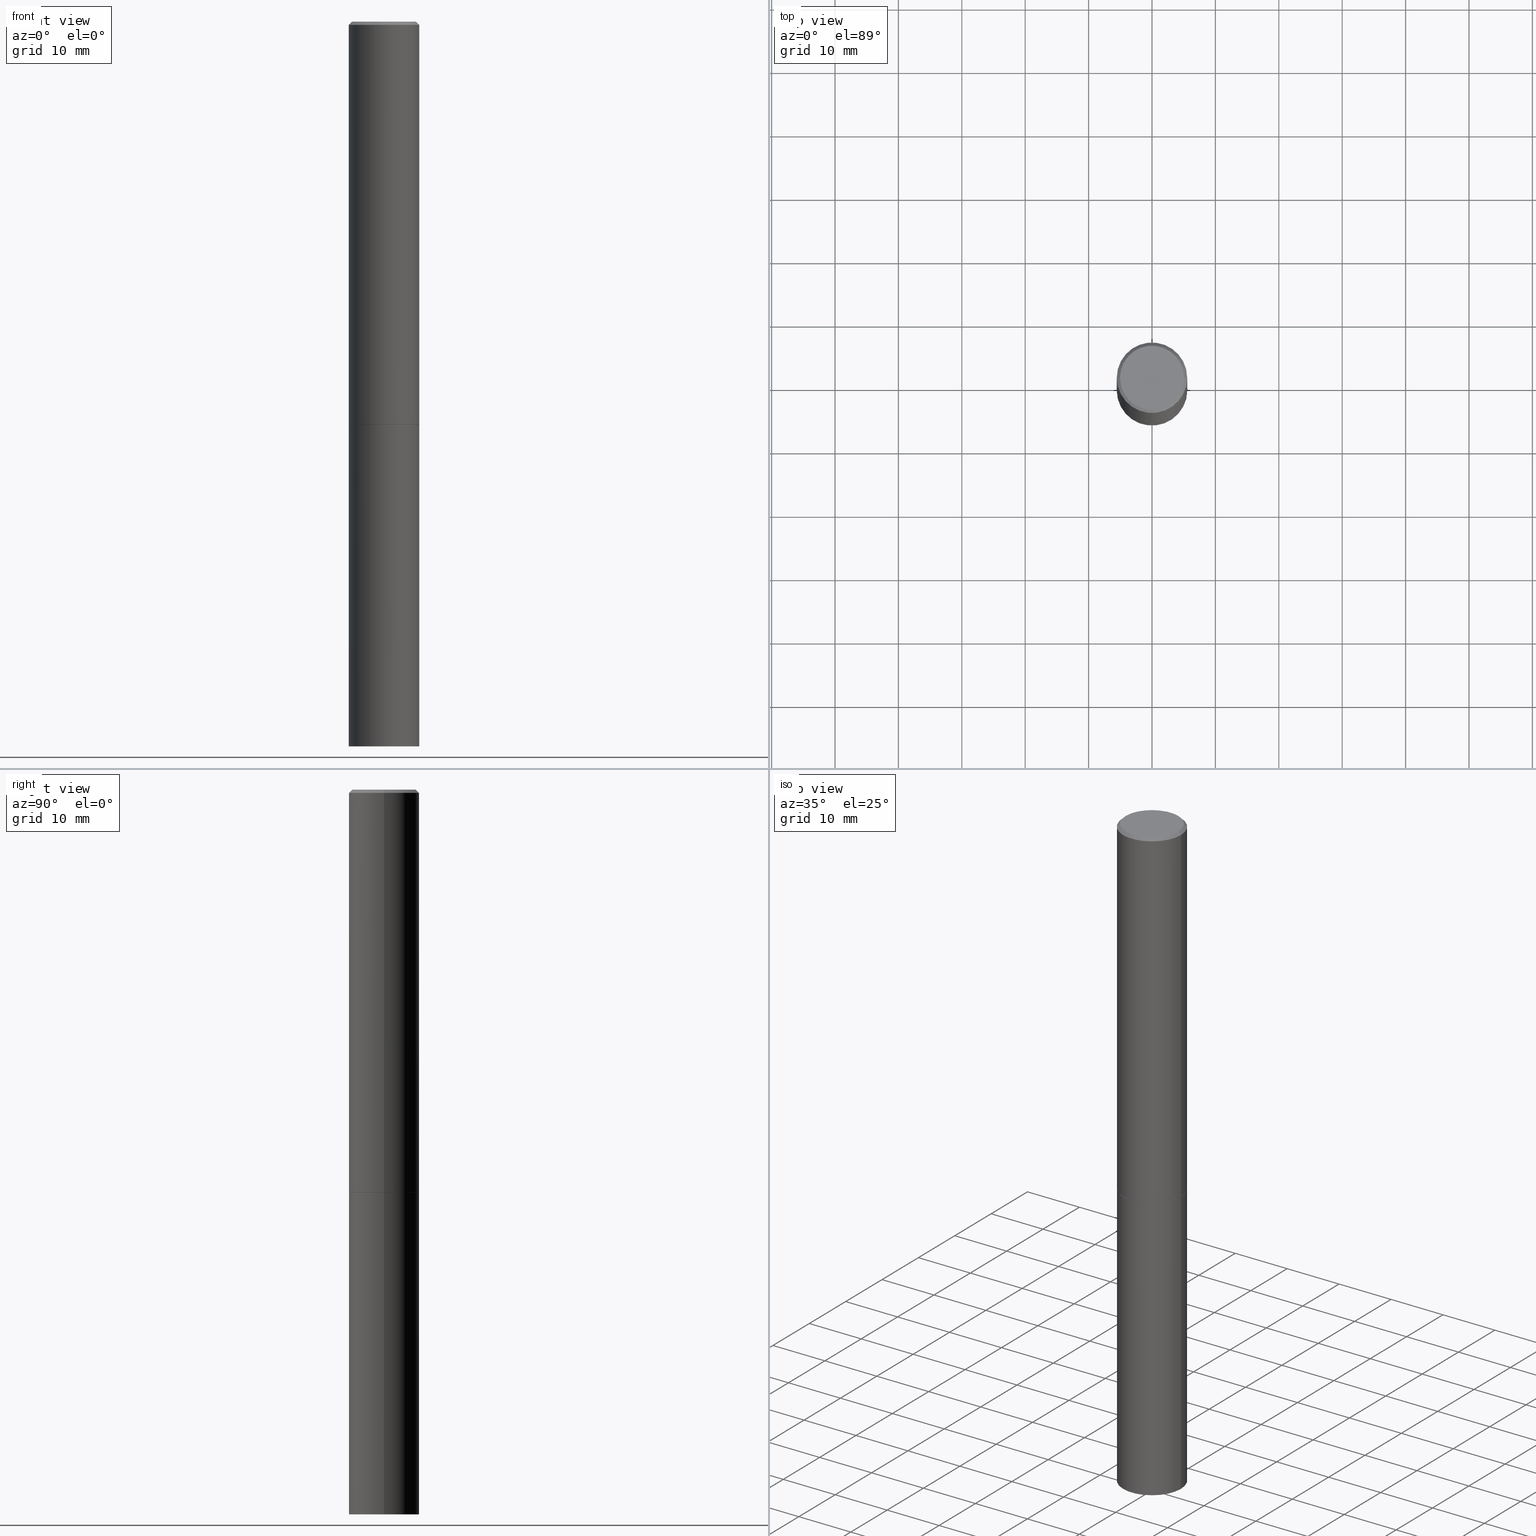
[diagram: canonical four-view strip — front | top / right | iso, engineering-drawing reading convention]
A machine part, canonical four-view strip (front | top / right | iso — engineering-drawing reading convention). The complete STEP part file that produces these views, byte-faithful:
ISO-10303-21;
HEADER;
FILE_DESCRIPTION (( 'STEP AP203' ),
    '1' );
FILE_NAME ('31732.STEP',
    '2023-03-21T20:27:41',
    ( '' ),
    ( '' ),
    'SwSTEP 2.0',
    'SolidWorks 2022',
    '' );
FILE_SCHEMA (( 'CONFIG_CONTROL_DESIGN' ));
ENDSEC;

DATA;
#1 = DIRECTION ( 'NONE',  ( 1.000000000000000000, -6.982962677686266711E-15, 4.876176775795935232E-29 ) ) ;
#2 = ORIENTED_EDGE ( 'NONE', *, *, #19, .T. ) ;
#3 = CYLINDRICAL_SURFACE ( 'NONE', #287, 0.2187499999999998057 ) ;
#4 = EDGE_CURVE ( 'NONE', #151, #165, #33, .T. ) ;
#5 = ORIENTED_EDGE ( 'NONE', *, *, #249, .F. ) ;
#6 = CARTESIAN_POINT ( 'NONE',  ( 0.2187499999999996947, -1.570563563789383264E-15, -0.02000000000000003164 ) ) ;
#7 = ORIENTED_EDGE ( 'NONE', *, *, #4, .T. ) ;
#8 = DIRECTION ( 'NONE',  ( -2.445468806185136597E-29, 3.491481338843145583E-15, 1.000000000000000000 ) ) ;
#9 = ADVANCED_FACE ( 'NONE', ( #376 ), #236, .F. ) ;
#10 = CIRCLE ( 'NONE', #213, 0.2177499999999999991 ) ;
#11 = CONICAL_SURFACE ( 'NONE', #250, 0.2177499999999999991, 0.7853981633978239785 ) ;
#12 = PERSON_AND_ORGANIZATION_ROLE ( 'classification_officer' ) ;
#13 = ORIENTED_EDGE ( 'NONE', *, *, #249, .T. ) ;
#14 = DIRECTION ( 'NONE',  ( -2.445468806185136597E-29, 3.491481338843145583E-15, 1.000000000000000000 ) ) ;
#15 = APPROVAL_STATUS ( 'not_yet_approved' ) ;
#16 = ORIENTED_EDGE ( 'NONE', *, *, #69, .T. ) ;
#17 = ORIENTED_EDGE ( 'NONE', *, *, #275, .F. ) ;
#18 = CARTESIAN_POINT ( 'NONE',  ( -0.2187499999999996947, 1.457693458967005573E-15, -0.02000000000000003164 ) ) ;
#19 = EDGE_CURVE ( 'NONE', #369, #318, #201, .T. ) ;
#20 = AXIS2_PLACEMENT_3D ( 'NONE', #80, #294, #297 ) ;
#21 = CARTESIAN_POINT ( 'NONE',  ( 6.113672015462842613E-29, -8.728703347107864943E-15, -2.500000000000000000 ) ) ;
#22 = CC_DESIGN_APPROVAL ( #185, ( #277 ) ) ;
#23 = CARTESIAN_POINT ( 'NONE',  ( -0.2187500000000003331, -1.418414293905028211E-14, -4.500000000000000000 ) ) ;
#24 = FACE_OUTER_BOUND ( 'NONE', #43, .T. ) ;
#25 = CARTESIAN_POINT ( 'NONE',  ( 0.000000000000000000, 0.000000000000000000, 0.000000000000000000 ) ) ;
#26 = CONICAL_SURFACE ( 'NONE', #113, 751.2258538476867216, 1.518436449235075036 ) ;
#27 = DIRECTION ( 'NONE',  ( -2.445468806185136597E-29, 3.491481338843145583E-15, 1.000000000000000000 ) ) ;
#28 = VERTEX_POINT ( 'NONE', #288 ) ;
#29 =( LENGTH_UNIT ( ) NAMED_UNIT ( * ) SI_UNIT ( $, .METRE. ) );
#30 = ORIENTED_EDGE ( 'NONE', *, *, #139, .T. ) ;
#31 = EDGE_CURVE ( 'NONE', #180, #151, #224, .T. ) ;
#32 = ORIENTED_EDGE ( 'NONE', *, *, #177, .T. ) ;
#33 = CIRCLE ( 'NONE', #306, 0.2187500000000000000 ) ;
#34 = LINE ( 'NONE', #117, #133 ) ;
#35 = VERTEX_POINT ( 'NONE', #179 ) ;
#36 = APPLICATION_PROTOCOL_DEFINITION ( 'international standard', 'config_control_design', 1994, #290 ) ;
#37 = EDGE_LOOP ( 'NONE', ( #13, #220 ) ) ;
#38 = APPROVAL_ROLE ( '' ) ;
#39 = VERTEX_POINT ( 'NONE', #302 ) ;
#40 = PERSON_AND_ORGANIZATION ( #91, #349 ) ;
#41 = ORIENTED_EDGE ( 'NONE', *, *, #320, .F. ) ;
#42 = APPROVAL_DATE_TIME ( #128, #84 ) ;
#43 = EDGE_LOOP ( 'NONE', ( #41, #311, #193, #178 ) ) ;
#44 = EDGE_CURVE ( 'NONE', #35, #323, #143, .T. ) ;
#45 = SECURITY_CLASSIFICATION_LEVEL ( 'unclassified' ) ;
#46 = DIRECTION ( 'NONE',  ( -2.445468806185136597E-29, 3.491481338843145583E-15, 1.000000000000000000 ) ) ;
#47 = CIRCLE ( 'NONE', #20, 0.1987499999999996769 ) ;
#48 = SECURITY_CLASSIFICATION ( '', '', #45 ) ;
#49 = FACE_OUTER_BOUND ( 'NONE', #181, .T. ) ;
#50 = DIRECTION ( 'NONE',  ( 2.445468806185136597E-29, -3.491481338843145583E-15, -1.000000000000000000 ) ) ;
#51 = LINE ( 'NONE', #108, #168 ) ;
#52 = EDGE_CURVE ( 'NONE', #151, #211, #195, .T. ) ;
#53 = AXIS2_PLACEMENT_3D ( 'NONE', #231, #145, #256 ) ;
#54 = DIRECTION ( 'NONE',  ( 2.438088387897960049E-29, -3.491481338843145188E-15, -1.000000000000000000 ) ) ;
#55 = CARTESIAN_POINT ( 'NONE',  ( 6.113672015462842613E-29, -8.728703347107864943E-15, -2.500000000000000000 ) ) ;
#56 = CARTESIAN_POINT ( 'NONE',  ( 0.2187500000000003331, -1.721239996180668100E-14, -4.500000000000000000 ) ) ;
#57 = CONICAL_SURFACE ( 'NONE', #356, 0.2177499999999999991, 0.7853981633978239785 ) ;
#58 = APPROVAL_PERSON_ORGANIZATION ( #164, #225, #135 ) ;
#59 = EDGE_LOOP ( 'NONE', ( #238, #5, #94, #2 ) ) ;
#60 = EDGE_LOOP ( 'NONE', ( #248, #126, #186 ) ) ;
#61 = CC_DESIGN_PERSON_AND_ORGANIZATION_ASSIGNMENT ( #283, #96, ( #341 ) ) ;
#62 = ORIENTED_EDGE ( 'NONE', *, *, #188, .T. ) ;
#63 = EDGE_CURVE ( 'NONE', #318, #369, #72, .T. ) ;
#64 = CARTESIAN_POINT ( 'NONE',  ( 0.000000000000000000, 0.000000000000000000, 0.000000000000000000 ) ) ;
#65 = ORIENTED_EDGE ( 'NONE', *, *, #63, .T. ) ;
#66 =( NAMED_UNIT ( * ) PLANE_ANGLE_UNIT ( ) SI_UNIT ( $, .RADIAN. ) );
#67 = ORIENTED_EDGE ( 'NONE', *, *, #334, .F. ) ;
#68 = DATE_AND_TIME ( #319, #73 ) ;
#69 = EDGE_CURVE ( 'NONE', #159, #35, #354, .T. ) ;
#70 = PERSON_AND_ORGANIZATION_ROLE ( 'design_supplier' ) ;
#71 = ORIENTED_EDGE ( 'NONE', *, *, #4, .F. ) ;
#72 = CIRCLE ( 'NONE', #299, 0.2187499999999996947 ) ;
#73 = LOCAL_TIME ( 16, 27, 41.00000000000000000, #130 ) ;
#74 = ORIENTED_EDGE ( 'NONE', *, *, #188, .F. ) ;
#75 = DIRECTION ( 'NONE',  ( -2.445468806185136877E-29, 3.491481338843145188E-15, 1.000000000000000000 ) ) ;
#76 = CARTESIAN_POINT ( 'NONE',  ( 4.890937612370280165E-31, -6.982962677686301470E-17, -0.02000000000000003164 ) ) ;
#77 = DIRECTION ( 'NONE',  ( 0.7071067811868130271, -2.468850131085038979E-15, 0.7071067811862817853 ) ) ;
#78 = ADVANCED_FACE ( 'NONE', ( #49 ), #11, .T. ) ;
#79 = CARTESIAN_POINT ( 'NONE',  ( 6.113672015462842613E-29, -8.728703347107864943E-15, -2.500000000000000000 ) ) ;
#80 = CARTESIAN_POINT ( 'NONE',  ( 0.000000000000000000, 0.000000000000000000, 0.000000000000000000 ) ) ;
#81 = CARTESIAN_POINT ( 'NONE',  ( 0.2187499999999996947, -1.570563563789383264E-15, -0.02000000000000003164 ) ) ;
#82 = AXIS2_PLACEMENT_3D ( 'NONE', #233, #27, #184 ) ;
#83 = CARTESIAN_POINT ( 'NONE',  ( -0.2187499999999998057, 1.554312234475217776E-15, -1.076017050993259781E-29 ) ) ;
#84 = APPROVAL ( #15, 'UNSPECIFIED' ) ;
#85 = PLANE ( 'NONE',  #88 ) ;
#86 = DIRECTION ( 'NONE',  ( -1.000000000000000000, 6.982962677686265133E-15, 0.000000000000000000 ) ) ;
#87 = CARTESIAN_POINT ( 'NONE',  ( 0.000000000000000000, 0.000000000000000000, 0.000000000000000000 ) ) ;
#88 = AXIS2_PLACEMENT_3D ( 'NONE', #358, #54, #200 ) ;
#89 =( NAMED_UNIT ( * ) SI_UNIT ( $, .STERADIAN. ) SOLID_ANGLE_UNIT ( ) );
#90 = DIRECTION ( 'NONE',  ( -2.438088387897960049E-29, 3.491481338843145188E-15, 1.000000000000000000 ) ) ;
#91 = PERSON ( 'UNSPECIFIED', 'UNSPECIFIED', 'UNSPECIFIED', ('UNSPECIFIED'), ('UNSPECIFIED'), ('UNSPECIFIED') ) ;
#92 = ORIENTED_EDGE ( 'NONE', *, *, #320, .T. ) ;
#93 =( CONVERSION_BASED_UNIT ( 'INCH', #115 ) LENGTH_UNIT ( ) NAMED_UNIT ( #292 ) );
#94 = ORIENTED_EDGE ( 'NONE', *, *, #258, .T. ) ;
#95 = VECTOR ( 'NONE', #333, 39.37007874015748143 ) ;
#96 = PERSON_AND_ORGANIZATION_ROLE ( 'design_owner' ) ;
#97 = ORIENTED_EDGE ( 'NONE', *, *, #107, .F. ) ;
#98 = CALENDAR_DATE ( 2023, 21, 3 ) ;
#99 = ORIENTED_EDGE ( 'NONE', *, *, #162, .F. ) ;
#100 = COORDINATED_UNIVERSAL_TIME_OFFSET ( 5, 0, .BEHIND. ) ;
#101 = ORIENTED_EDGE ( 'NONE', *, *, #210, .F. ) ;
#102 = AXIS2_PLACEMENT_3D ( 'NONE', #112, #296, #203 ) ;
#103 = DATE_AND_TIME ( #375, #229 ) ;
#104 = DIRECTION ( 'NONE',  ( 1.000000000000000000, -6.982962677686262766E-15, 0.000000000000000000 ) ) ;
#105 = DIRECTION ( 'NONE',  ( 1.000000000000000000, -6.982962677686267499E-15, 0.000000000000000000 ) ) ;
#106 = CONICAL_SURFACE ( 'NONE', #53, 0.2187499999999996947, 0.7853981633974473908 ) ;
#107 = EDGE_CURVE ( 'NONE', #323, #35, #227, .T. ) ;
#108 = CARTESIAN_POINT ( 'NONE',  ( -0.2177499999999999991, -7.181496539990246005E-15, -2.500000000000000000 ) ) ;
#109 = DIRECTION ( 'NONE',  ( -2.445468806185136597E-29, 3.491481338843145583E-15, 1.000000000000000000 ) ) ;
#110 = DIRECTION ( 'NONE',  ( -2.445468806185136597E-29, 3.491481338843145583E-15, 1.000000000000000000 ) ) ;
#111 = CLOSED_SHELL ( 'NONE', ( #382, #385, #9, #293, #262 ) ) ;
#112 = CARTESIAN_POINT ( 'NONE',  ( 1.387863832190143063E-15, 0.1987499999999996769, -6.939319160950740954E-16 ) ) ;
#113 = AXIS2_PLACEMENT_3D ( 'NONE', #125, #119, #86 ) ;
#114 = DIRECTION ( 'NONE',  ( 1.000000000000000000, -6.982962677686266711E-15, 4.876176775795936353E-29 ) ) ;
#115 = LENGTH_MEASURE_WITH_UNIT ( LENGTH_MEASURE( 0.02539999999999999897 ), #29 );
#116 = ADVANCED_FACE ( 'NONE', ( #317 ), #226, .T. ) ;
#117 = CARTESIAN_POINT ( 'NONE',  ( -0.2187500000000000000, 1.554312234475219157E-15, -1.076017050993260622E-29 ) ) ;
#118 = AXIS2_PLACEMENT_3D ( 'NONE', #176, #141, #171 ) ;
#119 = DIRECTION ( 'NONE',  ( 2.445468806185136597E-29, -3.491481338843145583E-15, -1.000000000000000000 ) ) ;
#120 = ORIENTED_EDGE ( 'NONE', *, *, #107, .T. ) ;
#121 = LINE ( 'NONE', #207, #360 ) ;
#122 = ORIENTED_EDGE ( 'NONE', *, *, #162, .T. ) ;
#123 = EDGE_CURVE ( 'NONE', #211, #367, #295, .T. ) ;
#124 = CC_DESIGN_PERSON_AND_ORGANIZATION_ASSIGNMENT ( #343, #70, ( #277 ) ) ;
#125 = CARTESIAN_POINT ( 'NONE',  ( 1.072548737362512635E-27, -1.531315342084755796E-13, -43.85861453843931912 ) ) ;
#126 = ORIENTED_EDGE ( 'NONE', *, *, #31, .T. ) ;
#127 = CIRCLE ( 'NONE', #153, 0.2187500000000000000 ) ;
#128 = DATE_AND_TIME ( #166, #134 ) ;
#129 = ORIENTED_EDGE ( 'NONE', *, *, #210, .T. ) ;
#130 = COORDINATED_UNIVERSAL_TIME_OFFSET ( 5, 0, .BEHIND. ) ;
#131 = EDGE_LOOP ( 'NONE', ( #101, #99 ) ) ;
#132 = ORIENTED_EDGE ( 'NONE', *, *, #52, .F. ) ;
#133 = VECTOR ( 'NONE', #155, 39.37007874015748143 ) ;
#134 = LOCAL_TIME ( 16, 27, 41.00000000000000000, #163 ) ;
#135 = APPROVAL_ROLE ( '' ) ;
#136 = ORIENTED_EDGE ( 'NONE', *, *, #19, .F. ) ;
#137 = DIRECTION ( 'NONE',  ( 1.000000000000000000, -6.982962677686262766E-15, 0.000000000000000000 ) ) ;
#138 = EDGE_LOOP ( 'NONE', ( #17, #120, #300, #136 ) ) ;
#139 = EDGE_CURVE ( 'NONE', #367, #211, #348, .T. ) ;
#140 = CC_DESIGN_PERSON_AND_ORGANIZATION_ASSIGNMENT ( #217, #370, ( #277 ) ) ;
#141 = DIRECTION ( 'NONE',  ( -2.445468806185136597E-29, 3.491481338843145583E-15, 1.000000000000000000 ) ) ;
#142 = UNCERTAINTY_MEASURE_WITH_UNIT (LENGTH_MEASURE( 1.000000000000000082E-05 ), #93, 'distance_accuracy_value', 'NONE');
#143 = CIRCLE ( 'NONE', #324, 0.2187500000000000000 ) ;
#144 = APPROVAL_PERSON_ORGANIZATION ( #218, #84, #314 ) ;
#145 = DIRECTION ( 'NONE',  ( 2.445468806185136597E-29, -3.491481338843145583E-15, -1.000000000000000000 ) ) ;
#146 = LINE ( 'NONE', #83, #148 ) ;
#147 = DIRECTION ( 'NONE',  ( 1.000000000000000000, -6.982962677686267499E-15, 0.000000000000000000 ) ) ;
#148 = VECTOR ( 'NONE', #379, 39.37007874015748143 ) ;
#149 = DIRECTION ( 'NONE',  ( 0.7071067811865469066, -7.319954787623254468E-15, -0.7071067811865482389 ) ) ;
#150 = CARTESIAN_POINT ( 'NONE',  ( 0.2187499999999998057, -1.527523085743869462E-15, 1.066663669705360184E-29 ) ) ;
#151 = VERTEX_POINT ( 'NONE', #56 ) ;
#152 = FACE_OUTER_BOUND ( 'NONE', #138, .T. ) ;
#153 = AXIS2_PLACEMENT_3D ( 'NONE', #271, #8, #205 ) ;
#154 = MANIFOLD_SOLID_BREP ( 'Body-Move/Copy2[2]', #269 ) ;
#155 = DIRECTION ( 'NONE',  ( -2.445468806185136877E-29, 3.491481338843145188E-15, 1.000000000000000000 ) ) ;
#156 = ADVANCED_FACE ( 'NONE', ( #169 ), #57, .T. ) ;
#157 = EDGE_LOOP ( 'NONE', ( #216, #342, #71 ) ) ;
#158 = LINE ( 'NONE', #150, #95 ) ;
#159 = VERTEX_POINT ( 'NONE', #331 ) ;
#160 = APPROVAL_DATE_TIME ( #241, #185 ) ;
#161 = AXIS2_PLACEMENT_3D ( 'NONE', #232, #50, #383 ) ;
#162 = EDGE_CURVE ( 'NONE', #28, #159, #206, .T. ) ;
#163 = COORDINATED_UNIVERSAL_TIME_OFFSET ( 5, 0, .BEHIND. ) ;
#164 = PERSON_AND_ORGANIZATION ( #91, #349 ) ;
#165 = VERTEX_POINT ( 'NONE', #23 ) ;
#166 = CALENDAR_DATE ( 2023, 21, 3 ) ;
#167 = DIRECTION ( 'NONE',  ( 1.000000000000000000, -6.982962677686265922E-15, 0.000000000000000000 ) ) ;
#168 = VECTOR ( 'NONE', #264, 39.37007874015748854 ) ;
#169 = FACE_OUTER_BOUND ( 'NONE', #347, .T. ) ;
#170 = CC_DESIGN_PERSON_AND_ORGANIZATION_ASSIGNMENT ( #40, #187, ( #237 ) ) ;
#171 = DIRECTION ( 'NONE',  ( 1.000000000000000000, -6.982962677686267499E-15, 0.000000000000000000 ) ) ;
#172 = AXIS2_PLACEMENT_3D ( 'NONE', #204, #261, #357 ) ;
#173 = CC_DESIGN_SECURITY_CLASSIFICATION ( #48, ( #277 ) ) ;
#174 = FACE_OUTER_BOUND ( 'NONE', #37, .T. ) ;
#175 = DIRECTION ( 'NONE',  ( -2.445468806185136597E-29, 3.491481338843145583E-15, 1.000000000000000000 ) ) ;
#176 = CARTESIAN_POINT ( 'NONE',  ( 6.113672015462842613E-29, -8.728703347107864943E-15, -2.500000000000000000 ) ) ;
#177 = EDGE_CURVE ( 'NONE', #266, #318, #298, .T. ) ;
#178 = ORIENTED_EDGE ( 'NONE', *, *, #139, .F. ) ;
#179 = CARTESIAN_POINT ( 'NONE',  ( 0.2187500000000000000, -1.025273495151289515E-14, -2.499000000000000998 ) ) ;
#180 = VERTEX_POINT ( 'NONE', #328 ) ;
#181 = EDGE_LOOP ( 'NONE', ( #74, #122, #16, #97 ) ) ;
#182 = DIRECTION ( 'NONE',  ( 0.000000000000000000, 0.000000000000000000, 1.000000000000000000 ) ) ;
#183 = AXIS2_PLACEMENT_3D ( 'NONE', #222, #353, #194 ) ;
#184 = DIRECTION ( 'NONE',  ( 1.000000000000000000, -6.982962677686266711E-15, 4.876176775795935232E-29 ) ) ;
#185 = APPROVAL ( #245, 'UNSPECIFIED' ) ;
#186 = ORIENTED_EDGE ( 'NONE', *, *, #301, .F. ) ;
#187 = PERSON_AND_ORGANIZATION_ROLE ( 'creator' ) ;
#188 = EDGE_CURVE ( 'NONE', #28, #323, #51, .T. ) ;
#189 = CARTESIAN_POINT ( 'NONE',  ( 6.111226546656659252E-29, -8.725211865769023513E-15, -2.499000000000000998 ) ) ;
#190 = PERSON_AND_ORGANIZATION ( #91, #349 ) ;
#191 = CARTESIAN_POINT ( 'NONE',  ( 6.111226546656659252E-29, -8.725211865769023513E-15, -2.499000000000000998 ) ) ;
#192 = APPROVAL_PERSON_ORGANIZATION ( #221, #185, #38 ) ;
#193 = ORIENTED_EDGE ( 'NONE', *, *, #52, .T. ) ;
#194 = DIRECTION ( 'NONE',  ( -1.000000000000000000, 6.982962677686265133E-15, 0.000000000000000000 ) ) ;
#195 = LINE ( 'NONE', #278, #364 ) ;
#196 = AXIS2_PLACEMENT_3D ( 'NONE', #365, #90, #308 ) ;
#197 = DIRECTION ( 'NONE',  ( 1.000000000000000000, -6.982962677686262766E-15, 0.000000000000000000 ) ) ;
#198 = CARTESIAN_POINT ( 'NONE',  ( 0.1987499999999996769, -1.467043770423236480E-15, 9.982525199991768280E-30 ) ) ;
#199 = ADVANCED_FACE ( 'NONE', ( #234 ), #106, .T. ) ;
#200 = DIRECTION ( 'NONE',  ( -1.000000000000000000, 6.982962677686265922E-15, -4.876176775795935793E-29 ) ) ;
#201 = CIRCLE ( 'NONE', #378, 0.2187499999999996947 ) ;
#202 = LOCAL_TIME ( 16, 27, 41.00000000000000000, #100 ) ;
#203 = DIRECTION ( 'NONE',  ( -1.000000000000000000, 6.982962677686265922E-15, -4.876176775795935793E-29 ) ) ;
#204 = CARTESIAN_POINT ( 'NONE',  ( 6.113672015462842613E-29, -8.728703347107864943E-15, -2.500000000000000000 ) ) ;
#205 = DIRECTION ( 'NONE',  ( 1.000000000000000000, -6.982962677686262766E-15, 0.000000000000000000 ) ) ;
#206 = CIRCLE ( 'NONE', #172, 0.2177499999999999991 ) ;
#207 = CARTESIAN_POINT ( 'NONE',  ( -2.454596653239523115E-19, -1.567163897843045332E-14, -4.488535798281836797 ) ) ;
#208 = CARTESIAN_POINT ( 'NONE',  ( -0.2187499999999996947, 1.457693458967005573E-15, -0.02000000000000003164 ) ) ;
#209 = ORIENTED_EDGE ( 'NONE', *, *, #44, .T. ) ;
#210 = EDGE_CURVE ( 'NONE', #159, #28, #10, .T. ) ;
#211 = VERTEX_POINT ( 'NONE', #326 ) ;
#212 = CARTESIAN_POINT ( 'NONE',  ( -0.2187500000000000000, -1.066587245147579176E-14, -2.500000000000000000 ) ) ;
#213 = AXIS2_PLACEMENT_3D ( 'NONE', #79, #110, #197 ) ;
#214 = ORIENTED_EDGE ( 'NONE', *, *, #69, .F. ) ;
#215 = SHAPE_DEFINITION_REPRESENTATION ( #351, #327 ) ;
#216 = ORIENTED_EDGE ( 'NONE', *, *, #31, .F. ) ;
#217 = PERSON_AND_ORGANIZATION ( #91, #349 ) ;
#218 = PERSON_AND_ORGANIZATION ( #91, #349 ) ;
#219 = VECTOR ( 'NONE', #149, 39.37007874015748143 ) ;
#220 = ORIENTED_EDGE ( 'NONE', *, *, #223, .T. ) ;
#221 = PERSON_AND_ORGANIZATION ( #91, #349 ) ;
#222 = CARTESIAN_POINT ( 'NONE',  ( 1.072548737362512635E-27, -1.531315342084755796E-13, -43.85861453843931912 ) ) ;
#223 = EDGE_CURVE ( 'NONE', #266, #39, #47, .T. ) ;
#224 = LINE ( 'NONE', #355, #228 ) ;
#225 = APPROVAL ( #252, 'UNSPECIFIED' ) ;
#226 = CYLINDRICAL_SURFACE ( 'NONE', #338, 0.2187499999999998057 ) ;
#227 = CIRCLE ( 'NONE', #387, 0.2187500000000000000 ) ;
#228 = VECTOR ( 'NONE', #336, 39.37007874015748854 ) ;
#229 = LOCAL_TIME ( 16, 27, 41.00000000000000000, #247 ) ;
#230 = PLANE ( 'NONE',  #102 ) ;
#231 = CARTESIAN_POINT ( 'NONE',  ( 4.890937612370280165E-31, -6.982962677686301470E-17, -0.02000000000000003164 ) ) ;
#232 = CARTESIAN_POINT ( 'NONE',  ( 4.890937612370280165E-31, -6.982962677686301470E-17, -0.02000000000000003164 ) ) ;
#233 = CARTESIAN_POINT ( 'NONE',  ( 0.000000000000000000, 0.000000000000000000, 0.000000000000000000 ) ) ;
#234 = FACE_OUTER_BOUND ( 'NONE', #59, .T. ) ;
#235 = CARTESIAN_POINT ( 'NONE',  ( -0.2187500000000000278, -2.843208511797721488E-15, -2.499000000000000998 ) ) ;
#236 = CONICAL_SURFACE ( 'NONE', #183, 751.2258538476867216, 1.518436449235075036 ) ;
#237 = PRODUCT_DEFINITION ( 'UNKNOWN', '', #277, #380 ) ;
#238 = ORIENTED_EDGE ( 'NONE', *, *, #177, .F. ) ;
#239 = CARTESIAN_POINT ( 'NONE',  ( 0.000000000000000000, 0.000000000000000000, 0.000000000000000000 ) ) ;
#240 = EDGE_LOOP ( 'NONE', ( #7, #92, #374, #132 ) ) ;
#241 = DATE_AND_TIME ( #98, #270 ) ;
#242 = AXIS2_PLACEMENT_3D ( 'NONE', #239, #265, #1 ) ;
#243 = ORIENTED_EDGE ( 'NONE', *, *, #123, .T. ) ;
#244 = CC_DESIGN_PERSON_AND_ORGANIZATION_ASSIGNMENT ( #190, #12, ( #48 ) ) ;
#245 = APPROVAL_STATUS ( 'not_yet_approved' ) ;
#246 = DIRECTION ( 'NONE',  ( -2.445468806185136597E-29, 3.491481338843145583E-15, 1.000000000000000000 ) ) ;
#247 = COORDINATED_UNIVERSAL_TIME_OFFSET ( 5, 0, .BEHIND. ) ;
#248 = ORIENTED_EDGE ( 'NONE', *, *, #330, .F. ) ;
#249 = EDGE_CURVE ( 'NONE', #39, #266, #263, .T. ) ;
#250 = AXIS2_PLACEMENT_3D ( 'NONE', #371, #14, #137 ) ;
#251 = DIRECTION ( 'NONE',  ( -2.445468806185136597E-29, 3.491481338843145583E-15, 1.000000000000000000 ) ) ;
#252 = APPROVAL_STATUS ( 'not_yet_approved' ) ;
#253 = CARTESIAN_POINT ( 'NONE',  ( 1.100460962783311469E-28, -1.571166602479415690E-14, -4.500000000000000000 ) ) ;
#254 = DIRECTION ( 'NONE',  ( -2.445468806185136597E-29, 3.491481338843145583E-15, 1.000000000000000000 ) ) ;
#255 = ADVANCED_FACE ( 'NONE', ( #260 ), #335, .T. ) ;
#256 = DIRECTION ( 'NONE',  ( -1.000000000000000000, 6.982962677686265922E-15, 0.000000000000000000 ) ) ;
#257 = VECTOR ( 'NONE', #329, 39.37007874015748143 ) ;
#258 = EDGE_CURVE ( 'NONE', #39, #369, #361, .T. ) ;
#259 = CARTESIAN_POINT ( 'NONE',  ( 0.000000000000000000, 0.000000000000000000, 0.000000000000000000 ) ) ;
#260 = FACE_OUTER_BOUND ( 'NONE', #363, .T. ) ;
#261 = DIRECTION ( 'NONE',  ( -2.445468806185136597E-29, 3.491481338843145583E-15, 1.000000000000000000 ) ) ;
#262 = ADVANCED_FACE ( 'NONE', ( #359 ), #85, .F. ) ;
#263 = CIRCLE ( 'NONE', #373, 0.1987499999999996769 ) ;
#264 = DIRECTION ( 'NONE',  ( -0.7071067811868130271, 7.493145998871311837E-15, 0.7071067811862817853 ) ) ;
#265 = DIRECTION ( 'NONE',  ( -2.445468806185136597E-29, 3.491481338843145583E-15, 1.000000000000000000 ) ) ;
#266 = VERTEX_POINT ( 'NONE', #198 ) ;
#267 = FACE_OUTER_BOUND ( 'NONE', #131, .T. ) ;
#268 = ORIENTED_EDGE ( 'NONE', *, *, #258, .F. ) ;
#269 = CLOSED_SHELL ( 'NONE', ( #156, #116, #255, #199, #346, #78, #304, #289 ) ) ;
#270 = LOCAL_TIME ( 16, 27, 41.00000000000000000, #276 ) ;
#271 = CARTESIAN_POINT ( 'NONE',  ( 1.100460962783311469E-28, -1.571166602479415690E-14, -4.500000000000000000 ) ) ;
#272 = ORIENTED_EDGE ( 'NONE', *, *, #223, .F. ) ;
#273 = DIRECTION ( 'NONE',  ( 1.000000000000000000, -6.982962677686266711E-15, 4.876176775795936353E-29 ) ) ;
#274 = EDGE_LOOP ( 'NONE', ( #209, #325, #284, #67 ) ) ;
#275 = EDGE_CURVE ( 'NONE', #323, #369, #146, .T. ) ;
#276 = COORDINATED_UNIVERSAL_TIME_OFFSET ( 5, 0, .BEHIND. ) ;
#277 = PRODUCT_DEFINITION_FORMATION_WITH_SPECIFIED_SOURCE ( 'ANY', '', #341, .NOT_KNOWN. ) ;
#278 = CARTESIAN_POINT ( 'NONE',  ( 0.2187500000000000000, -1.527523085743870843E-15, 1.066663669705360885E-29 ) ) ;
#279 = APPLICATION_CONTEXT ( 'configuration controlled 3d designs of mechanical parts and assemblies' ) ;
#280 = CC_DESIGN_DATE_AND_TIME_ASSIGNMENT ( #68, #312, ( #237 ) ) ;
#281 = CARTESIAN_POINT ( 'NONE',  ( 4.890937612370280165E-31, -6.982962677686301470E-17, -0.02000000000000003164 ) ) ;
#282 = ORIENTED_EDGE ( 'NONE', *, *, #44, .F. ) ;
#283 = PERSON_AND_ORGANIZATION ( #91, #349 ) ;
#284 = ORIENTED_EDGE ( 'NONE', *, *, #63, .F. ) ;
#285 = MANIFOLD_SOLID_BREP ( 'Body-Move/Copy2[1]', #111 ) ;
#286 = DATE_TIME_ROLE ( 'classification_date' ) ;
#287 = AXIS2_PLACEMENT_3D ( 'NONE', #87, #303, #273 ) ;
#288 = CARTESIAN_POINT ( 'NONE',  ( -0.2177499999999999991, -7.176198085642026759E-15, -2.500000000000000000 ) ) ;
#289 = ADVANCED_FACE ( 'NONE', ( #174 ), #230, .F. ) ;
#290 = APPLICATION_CONTEXT ( 'configuration controlled 3d designs of mechanical parts and assemblies' ) ;
#291 = DIRECTION ( 'NONE',  ( 1.000000000000000000, -6.982962677686267499E-15, 4.876176775795935793E-29 ) ) ;
#292 = DIMENSIONAL_EXPONENTS ( 1.000000000000000000, 0.000000000000000000, 0.000000000000000000, 0.000000000000000000, 0.000000000000000000, 0.000000000000000000, 0.000000000000000000 ) ;
#293 = ADVANCED_FACE ( 'NONE', ( #24 ), #386, .T. ) ;
#294 = DIRECTION ( 'NONE',  ( -2.445468806185136597E-29, 3.491481338843145583E-15, 1.000000000000000000 ) ) ;
#295 = CIRCLE ( 'NONE', #118, 0.2187500000000000000 ) ;
#296 = DIRECTION ( 'NONE',  ( 2.438088387897960049E-29, -3.491481338843145188E-15, -1.000000000000000000 ) ) ;
#297 = DIRECTION ( 'NONE',  ( 1.000000000000000000, -6.982962677686267499E-15, 4.876176775795935793E-29 ) ) ;
#298 = LINE ( 'NONE', #81, #219 ) ;
#299 = AXIS2_PLACEMENT_3D ( 'NONE', #281, #246, #322 ) ;
#300 = ORIENTED_EDGE ( 'NONE', *, *, #334, .T. ) ;
#301 = EDGE_CURVE ( 'NONE', #165, #151, #127, .T. ) ;
#302 = CARTESIAN_POINT ( 'NONE',  ( -0.1987499999999996769, 1.422778645578574515E-15, -9.827974342635069682E-30 ) ) ;
#303 = DIRECTION ( 'NONE',  ( -2.445468806185136597E-29, 3.491481338843145583E-15, 1.000000000000000000 ) ) ;
#304 = ADVANCED_FACE ( 'NONE', ( #267 ), #366, .F. ) ;
#305 = MECHANICAL_CONTEXT ( 'NONE', #290, 'mechanical' ) ;
#306 = AXIS2_PLACEMENT_3D ( 'NONE', #253, #251, #104 ) ;
#307 =( GEOMETRIC_REPRESENTATION_CONTEXT ( 3 ) GLOBAL_UNCERTAINTY_ASSIGNED_CONTEXT ( ( #142 ) ) GLOBAL_UNIT_ASSIGNED_CONTEXT ( ( #93, #66, #89 ) ) REPRESENTATION_CONTEXT ( 'NONE', 'WORKASPACE' ) );
#308 = DIRECTION ( 'NONE',  ( 1.000000000000000000, -6.982962677686265922E-15, 4.876176775795935793E-29 ) ) ;
#309 = DIRECTION ( 'NONE',  ( 1.000000000000000000, 0.000000000000000000, 0.000000000000000000 ) ) ;
#310 = CC_DESIGN_DATE_AND_TIME_ASSIGNMENT ( #344, #286, ( #48 ) ) ;
#311 = ORIENTED_EDGE ( 'NONE', *, *, #301, .T. ) ;
#312 = DATE_TIME_ROLE ( 'creation_date' ) ;
#313 = DIRECTION ( 'NONE',  ( -2.445468806185136597E-29, 3.491481338843145583E-15, 1.000000000000000000 ) ) ;
#314 = APPROVAL_ROLE ( '' ) ;
#315 = AXIS2_PLACEMENT_3D ( 'NONE', #55, #332, #147 ) ;
#316 = CC_DESIGN_APPROVAL ( #225, ( #237 ) ) ;
#317 = FACE_OUTER_BOUND ( 'NONE', #274, .T. ) ;
#318 = VERTEX_POINT ( 'NONE', #6 ) ;
#319 = CALENDAR_DATE ( 2023, 21, 3 ) ;
#320 = EDGE_CURVE ( 'NONE', #165, #367, #34, .T. ) ;
#321 = CALENDAR_DATE ( 2023, 21, 3 ) ;
#322 = DIRECTION ( 'NONE',  ( 1.000000000000000000, -6.982962677686265922E-15, 0.000000000000000000 ) ) ;
#323 = VERTEX_POINT ( 'NONE', #235 ) ;
#324 = AXIS2_PLACEMENT_3D ( 'NONE', #189, #313, #105 ) ;
#325 = ORIENTED_EDGE ( 'NONE', *, *, #275, .T. ) ;
#326 = CARTESIAN_POINT ( 'NONE',  ( 0.2187500000000000000, -1.025622643285173500E-14, -2.500000000000000000 ) ) ;
#327 = ADVANCED_BREP_SHAPE_REPRESENTATION ( '31732', ( #285, #154, #339 ), #307 ) ;
#328 = CARTESIAN_POINT ( 'NONE',  ( 1.097674568371179256E-28, -1.567139351876501872E-14, -4.488535798281836797 ) ) ;
#329 = DIRECTION ( 'NONE',  ( -0.7071067811865469066, 2.468850131082249961E-15, -0.7071067811865482389 ) ) ;
#330 = EDGE_CURVE ( 'NONE', #180, #165, #121, .T. ) ;
#331 = CARTESIAN_POINT ( 'NONE',  ( 0.2177499999999999991, -1.024924347017404898E-14, -2.500000000000000000 ) ) ;
#332 = DIRECTION ( 'NONE',  ( -2.445468806185136597E-29, 3.491481338843145583E-15, 1.000000000000000000 ) ) ;
#333 = DIRECTION ( 'NONE',  ( -2.445468806185136877E-29, 3.491481338843145188E-15, 1.000000000000000000 ) ) ;
#334 = EDGE_CURVE ( 'NONE', #35, #318, #158, .T. ) ;
#335 = CONICAL_SURFACE ( 'NONE', #161, 0.2187499999999996947, 0.7853981633974473908 ) ;
#336 = DIRECTION ( 'NONE',  ( 0.9986295347545742773, -7.033825938271993967E-15, -0.05233595624293554960 ) ) ;
#337 = FACE_OUTER_BOUND ( 'NONE', #240, .T. ) ;
#338 = AXIS2_PLACEMENT_3D ( 'NONE', #25, #384, #114 ) ;
#339 = AXIS2_PLACEMENT_3D ( 'NONE', #64, #182, #309 ) ;
#340 = CYLINDRICAL_SURFACE ( 'NONE', #242, 0.2187500000000000000 ) ;
#341 = PRODUCT ( '31732', '31732', '', ( #305 ) ) ;
#342 = ORIENTED_EDGE ( 'NONE', *, *, #330, .T. ) ;
#343 = PERSON_AND_ORGANIZATION ( #91, #349 ) ;
#344 = DATE_AND_TIME ( #321, #202 ) ;
#345 = CARTESIAN_POINT ( 'NONE',  ( 0.2177499999999999991, -1.024924347017404898E-14, -2.500000000000000000 ) ) ;
#346 = ADVANCED_FACE ( 'NONE', ( #152 ), #3, .T. ) ;
#347 = EDGE_LOOP ( 'NONE', ( #129, #62, #282, #214 ) ) ;
#348 = CIRCLE ( 'NONE', #315, 0.2187500000000000000 ) ;
#349 = ORGANIZATION ( 'UNSPECIFIED', 'UNSPECIFIED', '' ) ;
#350 = EDGE_LOOP ( 'NONE', ( #243, #30 ) ) ;
#351 = PRODUCT_DEFINITION_SHAPE ( 'NONE', 'NONE',  #237 ) ;
#352 = APPROVAL_DATE_TIME ( #103, #225 ) ;
#353 = DIRECTION ( 'NONE',  ( 2.445468806185136597E-29, -3.491481338843145583E-15, -1.000000000000000000 ) ) ;
#354 = LINE ( 'NONE', #345, #368 ) ;
#355 = CARTESIAN_POINT ( 'NONE',  ( 2.454596655434837696E-19, -1.567163897843045332E-14, -4.488535798281836797 ) ) ;
#356 = AXIS2_PLACEMENT_3D ( 'NONE', #21, #175, #388 ) ;
#357 = DIRECTION ( 'NONE',  ( 1.000000000000000000, -6.982962677686262766E-15, 0.000000000000000000 ) ) ;
#358 = CARTESIAN_POINT ( 'NONE',  ( 1.527523085743931585E-15, 0.2187499999999912570, -2.500000000000000444 ) ) ;
#359 = FACE_OUTER_BOUND ( 'NONE', #350, .T. ) ;
#360 = VECTOR ( 'NONE', #362, 39.37007874015748854 ) ;
#361 = LINE ( 'NONE', #18, #257 ) ;
#362 = DIRECTION ( 'NONE',  ( -0.9986295347545742773, 6.790662755453672411E-15, -0.05233595624293554960 ) ) ;
#363 = EDGE_LOOP ( 'NONE', ( #272, #32, #65, #268 ) ) ;
#364 = VECTOR ( 'NONE', #75, 39.37007874015748143 ) ;
#365 = CARTESIAN_POINT ( 'NONE',  ( 6.113672015462842613E-29, -8.728703347107864943E-15, -2.500000000000000000 ) ) ;
#366 = PLANE ( 'NONE',  #196 ) ;
#367 = VERTEX_POINT ( 'NONE', #212 ) ;
#368 = VECTOR ( 'NONE', #77, 39.37007874015748854 ) ;
#369 = VERTEX_POINT ( 'NONE', #208 ) ;
#370 = PERSON_AND_ORGANIZATION_ROLE ( 'creator' ) ;
#371 = CARTESIAN_POINT ( 'NONE',  ( 6.113672015462842613E-29, -8.728703347107864943E-15, -2.500000000000000000 ) ) ;
#372 = APPLICATION_PROTOCOL_DEFINITION ( 'international standard', 'config_control_design', 1994, #279 ) ;
#373 = AXIS2_PLACEMENT_3D ( 'NONE', #259, #109, #291 ) ;
#374 = ORIENTED_EDGE ( 'NONE', *, *, #123, .F. ) ;
#375 = CALENDAR_DATE ( 2023, 21, 3 ) ;
#376 = FACE_OUTER_BOUND ( 'NONE', #157, .T. ) ;
#377 = DIRECTION ( 'NONE',  ( 1.000000000000000000, -6.982962677686267499E-15, 0.000000000000000000 ) ) ;
#378 = AXIS2_PLACEMENT_3D ( 'NONE', #76, #46, #167 ) ;
#379 = DIRECTION ( 'NONE',  ( -2.445468806185136877E-29, 3.491481338843145188E-15, 1.000000000000000000 ) ) ;
#380 = DESIGN_CONTEXT ( 'detailed design', #279, 'design' ) ;
#381 = CC_DESIGN_APPROVAL ( #84, ( #48 ) ) ;
#382 = ADVANCED_FACE ( 'NONE', ( #337 ), #340, .T. ) ;
#383 = DIRECTION ( 'NONE',  ( -1.000000000000000000, 6.982962677686265922E-15, 0.000000000000000000 ) ) ;
#384 = DIRECTION ( 'NONE',  ( -2.445468806185136597E-29, 3.491481338843145583E-15, 1.000000000000000000 ) ) ;
#385 = ADVANCED_FACE ( 'NONE', ( #390 ), #26, .F. ) ;
#386 = CYLINDRICAL_SURFACE ( 'NONE', #82, 0.2187500000000000000 ) ;
#387 = AXIS2_PLACEMENT_3D ( 'NONE', #191, #254, #377 ) ;
#388 = DIRECTION ( 'NONE',  ( 1.000000000000000000, -6.982962677686262766E-15, 0.000000000000000000 ) ) ;
#389 = PRODUCT_RELATED_PRODUCT_CATEGORY ( 'detail', '', ( #341 ) ) ;
#390 = FACE_OUTER_BOUND ( 'NONE', #60, .T. ) ;
ENDSEC;
END-ISO-10303-21;
